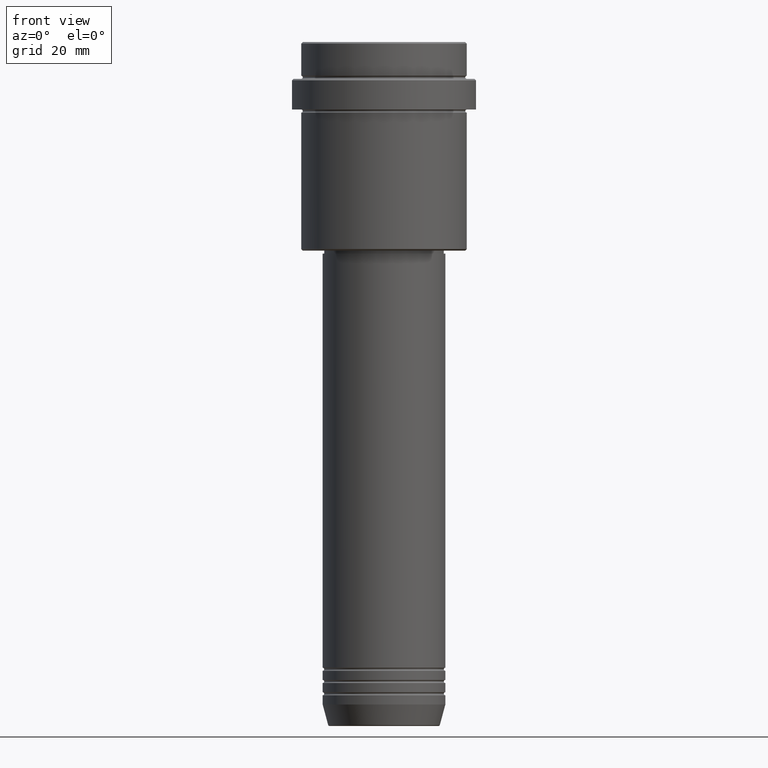
[diagram: clean part render]
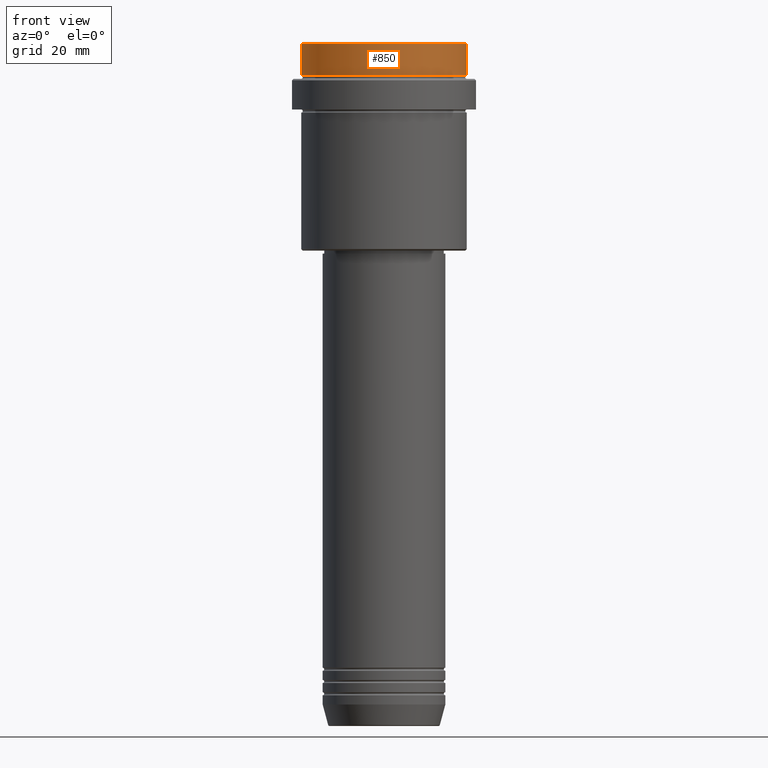
[diagram: same view with one face highlighted and labeled with its STEP entity id]
A machine part, front view. The second image highlights one B-rep face of the part: STEP entity #850.
In plain terms, the highlighted cylindrical surface (partial cylindrical patch) has radius 27 mm, axis along (-0, -0, 1).
Its self-contained STEP definition (entity closure, byte-faithful):
#55 = CARTESIAN_POINT ( 'NONE',  ( -26.99999999999999645, 3.306546357697853339E-15, -0.5000000000000316414 ) ) ;
#68 = VERTEX_POINT ( 'NONE', #1116 ) ;
#78 = CARTESIAN_POINT ( 'NONE',  ( -26.99999999999999645, 3.306546357697853339E-15, 0.000000000000000000 ) ) ;
#149 = EDGE_CURVE ( 'NONE', #1407, #1147, #875, .T. ) ;
#159 = DIRECTION ( 'NONE',  ( 1.000000000000000000, 0.000000000000000000, 0.000000000000000000 ) ) ;
#167 = ORIENTED_EDGE ( 'NONE', *, *, #1043, .T. ) ;
#197 = EDGE_CURVE ( 'NONE', #1407, #702, #504, .T. ) ;
#268 = LINE ( 'NONE', #824, #592 ) ;
#418 = ORIENTED_EDGE ( 'NONE', *, *, #970, .T. ) ;
#504 = LINE ( 'NONE', #78, #1173 ) ;
#565 = EDGE_LOOP ( 'NONE', ( #784, #622, #167, #418 ) ) ;
#592 = VECTOR ( 'NONE', #926, 1000.000000000000000 ) ;
#618 = DIRECTION ( 'NONE',  ( 0.000000000000000000, 0.000000000000000000, -1.000000000000000000 ) ) ;
#622 = ORIENTED_EDGE ( 'NONE', *, *, #149, .T. ) ;
#641 = CIRCLE ( 'NONE', #892, 26.99999999999999645 ) ;
#665 = AXIS2_PLACEMENT_3D ( 'NONE', #1009, #1344, #1119 ) ;
#685 = FACE_OUTER_BOUND ( 'NONE', #565, .T. ) ;
#702 = VERTEX_POINT ( 'NONE', #55 ) ;
#703 = CARTESIAN_POINT ( 'NONE',  ( -26.99999999999999645, 3.306546357697853339E-15, -11.00000000000000178 ) ) ;
#761 = AXIS2_PLACEMENT_3D ( 'NONE', #1350, #803, #159 ) ;
#784 = ORIENTED_EDGE ( 'NONE', *, *, #197, .F. ) ;
#803 = DIRECTION ( 'NONE',  ( -0.000000000000000000, -0.000000000000000000, 1.000000000000000000 ) ) ;
#824 = CARTESIAN_POINT ( 'NONE',  ( 26.99999999999999645, 0.000000000000000000, 0.000000000000000000 ) ) ;
#850 = ADVANCED_FACE ( 'NONE', ( #685 ), #1364, .T. ) ;
#875 = CIRCLE ( 'NONE', #761, 26.99999999999999645 ) ;
#892 = AXIS2_PLACEMENT_3D ( 'NONE', #1389, #618, #1395 ) ;
#926 = DIRECTION ( 'NONE',  ( -0.000000000000000000, -0.000000000000000000, 1.000000000000000000 ) ) ;
#970 = EDGE_CURVE ( 'NONE', #68, #702, #641, .T. ) ;
#1009 = CARTESIAN_POINT ( 'NONE',  ( 0.000000000000000000, 0.000000000000000000, 0.000000000000000000 ) ) ;
#1043 = EDGE_CURVE ( 'NONE', #1147, #68, #268, .T. ) ;
#1052 = DIRECTION ( 'NONE',  ( -0.000000000000000000, -0.000000000000000000, 1.000000000000000000 ) ) ;
#1116 = CARTESIAN_POINT ( 'NONE',  ( 26.99999999999999645, 0.000000000000000000, -0.5000000000000316414 ) ) ;
#1119 = DIRECTION ( 'NONE',  ( 1.000000000000000000, 0.000000000000000000, 0.000000000000000000 ) ) ;
#1147 = VERTEX_POINT ( 'NONE', #1304 ) ;
#1173 = VECTOR ( 'NONE', #1052, 1000.000000000000000 ) ;
#1304 = CARTESIAN_POINT ( 'NONE',  ( 26.99999999999999645, 0.000000000000000000, -11.00000000000000178 ) ) ;
#1344 = DIRECTION ( 'NONE',  ( -0.000000000000000000, -0.000000000000000000, 1.000000000000000000 ) ) ;
#1350 = CARTESIAN_POINT ( 'NONE',  ( 0.000000000000000000, 0.000000000000000000, -11.00000000000000178 ) ) ;
#1364 = CYLINDRICAL_SURFACE ( 'NONE', #665, 26.99999999999999645 ) ;
#1389 = CARTESIAN_POINT ( 'NONE',  ( 0.000000000000000000, 0.000000000000000000, -0.5000000000000316414 ) ) ;
#1395 = DIRECTION ( 'NONE',  ( 1.000000000000000000, 0.000000000000000000, 0.000000000000000000 ) ) ;
#1407 = VERTEX_POINT ( 'NONE', #703 ) ;